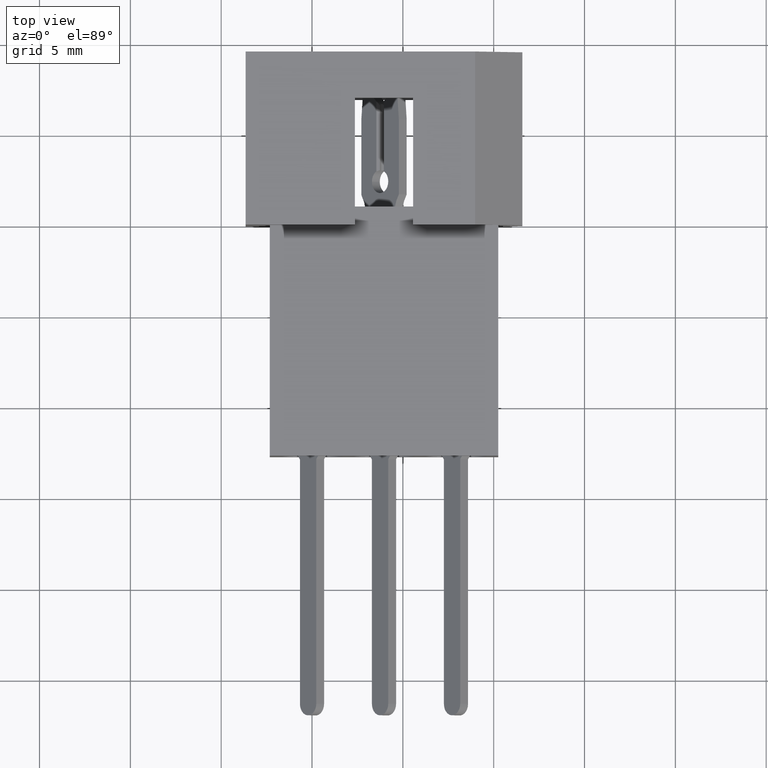
[diagram: clean part render]
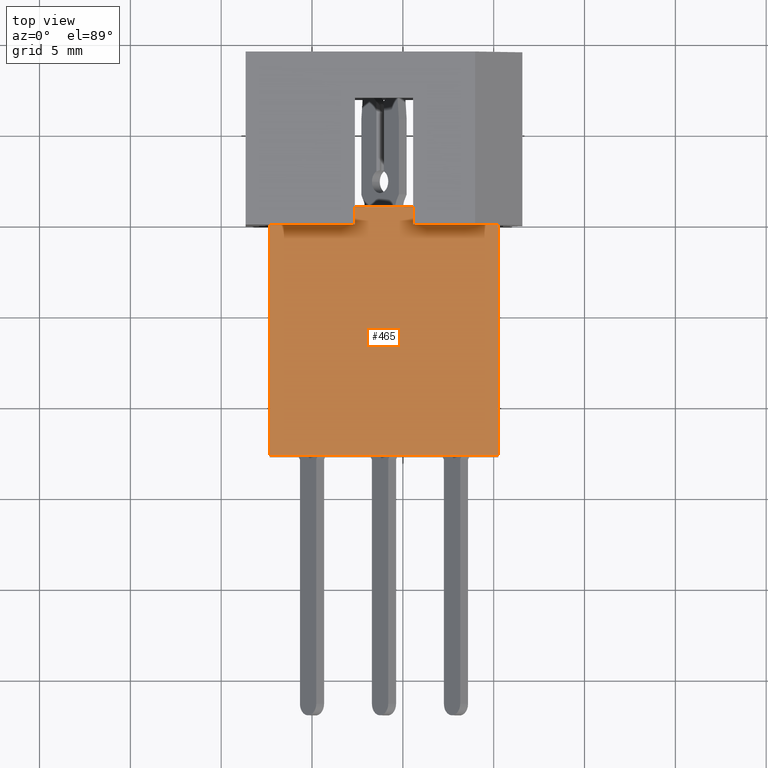
[diagram: same view with one face highlighted and labeled with its STEP entity id]
A machine part, top view. The second image highlights one B-rep face of the part: STEP entity #465.
In plain terms, the highlighted planar face has unit normal (0, 0, 1).
Its self-contained STEP definition (entity closure, byte-faithful):
#222 = VERTEX_POINT ( 'NONE', #743 ) ;
#297 = LINE ( 'NONE', #4888, #1249 ) ;
#465 = ADVANCED_FACE ( 'NONE', ( #1703 ), #2845, .T. ) ;
#480 = LINE ( 'NONE', #2391, #1351 ) ;
#591 = VERTEX_POINT ( 'NONE', #3560 ) ;
#629 = LINE ( 'NONE', #2630, #5206 ) ;
#699 = DIRECTION ( 'NONE',  ( 0.0000000000000000000, 1.000000000000000000, 0.0000000000000000000 ) ) ;
#719 = VERTEX_POINT ( 'NONE', #3539 ) ;
#743 = CARTESIAN_POINT ( 'NONE',  ( -2.324100000000000100, -12.69999999999999900, 2.540000000000000000 ) ) ;
#791 = VECTOR ( 'NONE', #2683, 1000.000000000000000 ) ;
#813 = LINE ( 'NONE', #5264, #6396 ) ;
#849 = LINE ( 'NONE', #2232, #6048 ) ;
#1184 = CARTESIAN_POINT ( 'NONE',  ( 5.562599999999997100, 1.015999999999999600, 2.539999999999999600 ) ) ;
#1215 = DIRECTION ( 'NONE',  ( 1.000000000000000000, 0.0000000000000000000, 0.0000000000000000000 ) ) ;
#1249 = VECTOR ( 'NONE', #5427, 1000.000000000000000 ) ;
#1254 = ORIENTED_EDGE ( 'NONE', *, *, #3949, .T. ) ;
#1351 = VECTOR ( 'NONE', #6368, 1000.000000000000000 ) ;
#1376 = CARTESIAN_POINT ( 'NONE',  ( -2.324100000000000100, -12.69999999999999900, 2.540000000000000000 ) ) ;
#1612 = EDGE_CURVE ( 'NONE', #6355, #4732, #5004, .T. ) ;
#1703 = FACE_OUTER_BOUND ( 'NONE', #5482, .T. ) ;
#1959 = ORIENTED_EDGE ( 'NONE', *, *, #3794, .F. ) ;
#2219 = VERTEX_POINT ( 'NONE', #4277 ) ;
#2232 = CARTESIAN_POINT ( 'NONE',  ( 5.562599999999996200, 6.984999999999999400, 2.539999999999999600 ) ) ;
#2256 = AXIS2_PLACEMENT_3D ( 'NONE', #1376, #5868, #5413 ) ;
#2391 = CARTESIAN_POINT ( 'NONE',  ( 2.362199999999997400, 6.984999999999999400, 2.539999999999999600 ) ) ;
#2630 = CARTESIAN_POINT ( 'NONE',  ( 0.0000000000000000000, 1.015999999999999600, 2.539999999999999600 ) ) ;
#2683 = DIRECTION ( 'NONE',  ( 0.0000000000000000000, 1.000000000000000000, 0.0000000000000000000 ) ) ;
#2694 = CARTESIAN_POINT ( 'NONE',  ( -2.324100000000000100, 0.0000000000000000000, 2.540000000000000000 ) ) ;
#2843 = CARTESIAN_POINT ( 'NONE',  ( 10.24890000000001100, 0.0000000000000000000, 2.539999999999999600 ) ) ;
#2845 = PLANE ( 'NONE',  #2256 ) ;
#2958 = EDGE_CURVE ( 'NONE', #719, #4732, #813, .T. ) ;
#3539 = CARTESIAN_POINT ( 'NONE',  ( 10.24889999999999900, -12.69999999999999900, 2.540000000000000000 ) ) ;
#3541 = DIRECTION ( 'NONE',  ( 1.000000000000000000, 0.0000000000000000000, 0.0000000000000000000 ) ) ;
#3560 = CARTESIAN_POINT ( 'NONE',  ( 2.362199999999998300, 1.016000000000001300, 2.539999999999999600 ) ) ;
#3671 = VECTOR ( 'NONE', #4232, 1000.000000000000000 ) ;
#3794 = EDGE_CURVE ( 'NONE', #2219, #5828, #5450, .T. ) ;
#3949 = EDGE_CURVE ( 'NONE', #591, #5828, #480, .T. ) ;
#3960 = LINE ( 'NONE', #5676, #791 ) ;
#4128 = VECTOR ( 'NONE', #1215, 1000.000000000000000 ) ;
#4232 = DIRECTION ( 'NONE',  ( 1.000000000000000000, 0.0000000000000000000, 0.0000000000000000000 ) ) ;
#4277 = CARTESIAN_POINT ( 'NONE',  ( -2.324100000000000100, 0.0000000000000000000, 2.540000000000000000 ) ) ;
#4568 = EDGE_CURVE ( 'NONE', #591, #5242, #629, .T. ) ;
#4654 = ORIENTED_EDGE ( 'NONE', *, *, #5611, .T. ) ;
#4696 = EDGE_CURVE ( 'NONE', #222, #2219, #3960, .T. ) ;
#4732 = VERTEX_POINT ( 'NONE', #2843 ) ;
#4888 = CARTESIAN_POINT ( 'NONE',  ( -2.324100000000000100, -12.69999999999999900, 2.540000000000000000 ) ) ;
#5004 = LINE ( 'NONE', #2694, #3671 ) ;
#5206 = VECTOR ( 'NONE', #3541, 1000.000000000000000 ) ;
#5242 = VERTEX_POINT ( 'NONE', #1184 ) ;
#5264 = CARTESIAN_POINT ( 'NONE',  ( 10.24889999999999900, -12.69999999999999900, 2.540000000000000000 ) ) ;
#5284 = CARTESIAN_POINT ( 'NONE',  ( 2.362199999999995600, 0.0000000000000000000, 2.540000000000000000 ) ) ;
#5413 = DIRECTION ( 'NONE',  ( 1.000000000000000000, 0.0000000000000000000, -0.0000000000000000000 ) ) ;
#5424 = CARTESIAN_POINT ( 'NONE',  ( 5.562599999999997100, 3.919359615991188300E-016, 2.539999999999999600 ) ) ;
#5427 = DIRECTION ( 'NONE',  ( 1.000000000000000000, 0.0000000000000000000, 0.0000000000000000000 ) ) ;
#5450 = LINE ( 'NONE', #5733, #4128 ) ;
#5482 = EDGE_LOOP ( 'NONE', ( #1959, #6444, #6204, #6411, #6193, #4654, #6315, #1254 ) ) ;
#5611 = EDGE_CURVE ( 'NONE', #6355, #5242, #849, .T. ) ;
#5676 = CARTESIAN_POINT ( 'NONE',  ( -2.324100000000000100, -12.69999999999999900, 2.540000000000000000 ) ) ;
#5719 = DIRECTION ( 'NONE',  ( -1.241749088029210900E-016, 1.000000000000000000, -0.0000000000000000000 ) ) ;
#5733 = CARTESIAN_POINT ( 'NONE',  ( -2.324100000000000100, 0.0000000000000000000, 2.540000000000000000 ) ) ;
#5828 = VERTEX_POINT ( 'NONE', #5284 ) ;
#5868 = DIRECTION ( 'NONE',  ( 0.0000000000000000000, 0.0000000000000000000, 1.000000000000000000 ) ) ;
#5900 = EDGE_CURVE ( 'NONE', #222, #719, #297, .T. ) ;
#6048 = VECTOR ( 'NONE', #5719, 1000.000000000000000 ) ;
#6193 = ORIENTED_EDGE ( 'NONE', *, *, #1612, .F. ) ;
#6204 = ORIENTED_EDGE ( 'NONE', *, *, #5900, .T. ) ;
#6315 = ORIENTED_EDGE ( 'NONE', *, *, #4568, .F. ) ;
#6355 = VERTEX_POINT ( 'NONE', #5424 ) ;
#6368 = DIRECTION ( 'NONE',  ( 1.241749088029210900E-016, -1.000000000000000000, 0.0000000000000000000 ) ) ;
#6396 = VECTOR ( 'NONE', #699, 1000.000000000000000 ) ;
#6411 = ORIENTED_EDGE ( 'NONE', *, *, #2958, .T. ) ;
#6444 = ORIENTED_EDGE ( 'NONE', *, *, #4696, .F. ) ;